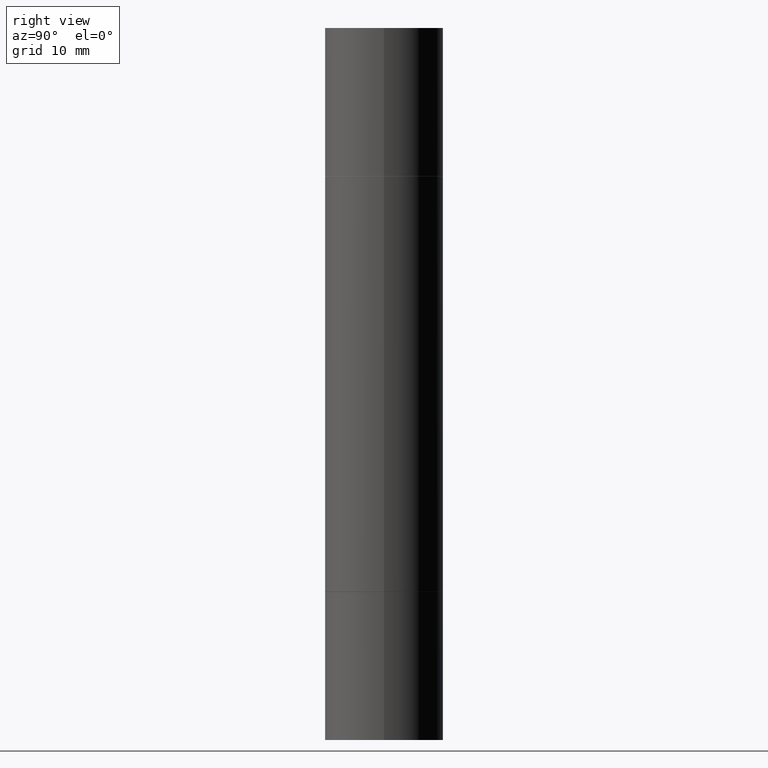
[diagram: clean part render]
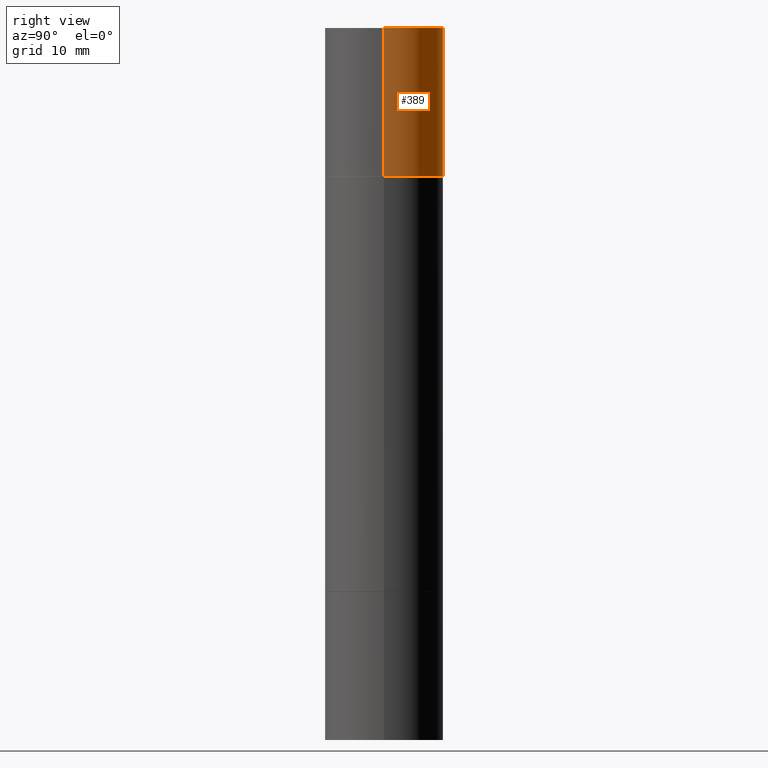
[diagram: same view with one face highlighted and labeled with its STEP entity id]
A machine part, right view. The second image highlights one B-rep face of the part: STEP entity #389.
In plain terms, the highlighted cylindrical surface (partial cylindrical patch) has radius 6.35 mm, axis along (-0, -0, -1).
Its self-contained STEP definition (entity closure, byte-faithful):
#14 = DIRECTION ( 'NONE',  ( -2.445468806185136877E-29, -3.492890411551753071E-15, -1.000000000000000000 ) ) ;
#15 = VERTEX_POINT ( 'NONE', #109 ) ;
#31 = EDGE_CURVE ( 'NONE', #15, #136, #584, .T. ) ;
#46 = CARTESIAN_POINT ( 'NONE',  ( 0.2500000000000000000, -3.926683567578497071E-15, -0.6249999999999988898 ) ) ;
#88 = CARTESIAN_POINT ( 'NONE',  ( 0.000000000000000000, -1.047655762559234344E-14, -2.999999999999999112 ) ) ;
#109 = CARTESIAN_POINT ( 'NONE',  ( -0.2500000000000000000, 6.257098548958748880E-16, 1.092739197465709232E-15 ) ) ;
#116 = DIRECTION ( 'NONE',  ( 1.000000000000000000, -6.982962677686266711E-15, 0.000000000000000000 ) ) ;
#136 = VERTEX_POINT ( 'NONE', #485 ) ;
#137 = CYLINDRICAL_SURFACE ( 'NONE', #645, 0.2500000000000000000 ) ;
#148 = DIRECTION ( 'NONE',  ( -2.445468806185136597E-29, -3.492890411551752677E-15, -1.000000000000000000 ) ) ;
#236 = ORIENTED_EDGE ( 'NONE', *, *, #577, .F. ) ;
#276 = CARTESIAN_POINT ( 'NONE',  ( 5.807988414689700538E-29, -2.180942898156930788E-15, -0.6249999999999988898 ) ) ;
#280 = ORIENTED_EDGE ( 'NONE', *, *, #31, .F. ) ;
#295 = CARTESIAN_POINT ( 'NONE',  ( 0.2500000000000000000, -1.222229829501391170E-14, -2.999999999999999112 ) ) ;
#308 = ORIENTED_EDGE ( 'NONE', *, *, #347, .T. ) ;
#319 = CARTESIAN_POINT ( 'NONE',  ( -0.2500000000000000000, -8.761433126149462132E-15, -2.999999999999999112 ) ) ;
#322 = CARTESIAN_POINT ( 'NONE',  ( 0.2500000000000000000, -1.743627060358652092E-15, 1.092739197465705287E-15 ) ) ;
#323 = VECTOR ( 'NONE', #14, 39.37007874015748143 ) ;
#340 = DIRECTION ( 'NONE',  ( 1.000000000000000000, -6.982962677686266711E-15, 0.000000000000000000 ) ) ;
#347 = EDGE_CURVE ( 'NONE', #384, #136, #501, .T. ) ;
#384 = VERTEX_POINT ( 'NONE', #46 ) ;
#389 = ADVANCED_FACE ( 'NONE', ( #471 ), #137, .T. ) ;
#404 = AXIS2_PLACEMENT_3D ( 'NONE', #276, #608, #340 ) ;
#407 = LINE ( 'NONE', #295, #581 ) ;
#419 = ORIENTED_EDGE ( 'NONE', *, *, #426, .T. ) ;
#426 = EDGE_CURVE ( 'NONE', #531, #384, #407, .T. ) ;
#430 = EDGE_LOOP ( 'NONE', ( #280, #236, #419, #308 ) ) ;
#458 = CIRCLE ( 'NONE', #655, 0.2500000000000000000 ) ;
#471 = FACE_OUTER_BOUND ( 'NONE', #430, .T. ) ;
#485 = CARTESIAN_POINT ( 'NONE',  ( -0.2500000000000000000, 6.257098548958748880E-16, -0.6249999999999988898 ) ) ;
#501 = CIRCLE ( 'NONE', #404, 0.2500000000000000000 ) ;
#508 = DIRECTION ( 'NONE',  ( 1.000000000000000000, -6.982962677686270655E-15, 0.000000000000000000 ) ) ;
#526 = CARTESIAN_POINT ( 'NONE',  ( 7.336406418555409790E-29, 2.113609062914567177E-18, 1.092739197465705287E-15 ) ) ;
#531 = VERTEX_POINT ( 'NONE', #322 ) ;
#577 = EDGE_CURVE ( 'NONE', #531, #15, #458, .T. ) ;
#578 = DIRECTION ( 'NONE',  ( 2.445468806185136597E-29, 3.492890411551752677E-15, 1.000000000000000000 ) ) ;
#581 = VECTOR ( 'NONE', #670, 39.37007874015748143 ) ;
#584 = LINE ( 'NONE', #319, #323 ) ;
#608 = DIRECTION ( 'NONE',  ( 2.445468806185136597E-29, 3.492890411551752677E-15, 1.000000000000000000 ) ) ;
#645 = AXIS2_PLACEMENT_3D ( 'NONE', #88, #148, #508 ) ;
#655 = AXIS2_PLACEMENT_3D ( 'NONE', #526, #578, #116 ) ;
#670 = DIRECTION ( 'NONE',  ( -2.445468806185136877E-29, -3.492890411551753071E-15, -1.000000000000000000 ) ) ;